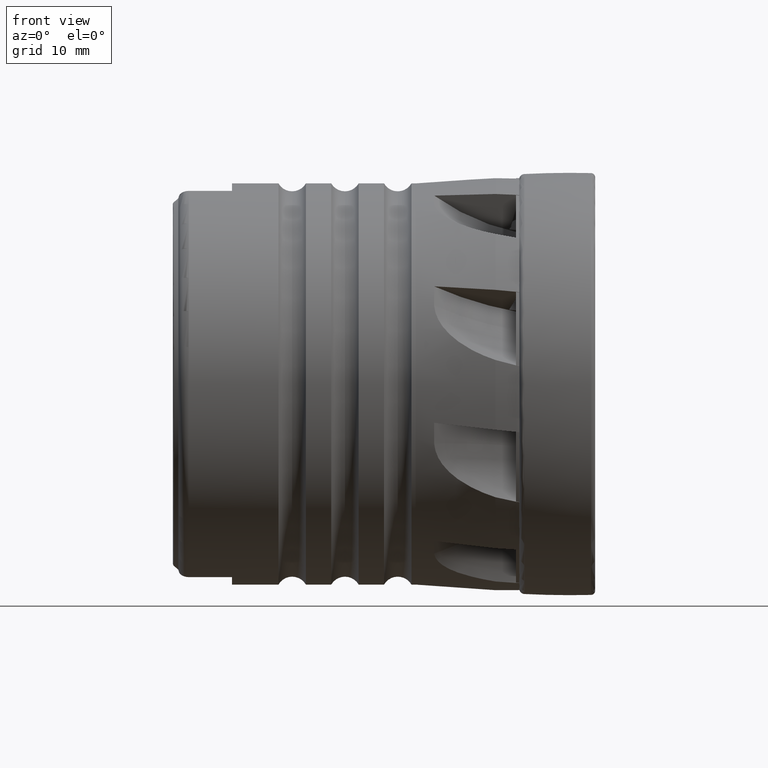
[diagram: clean part render]
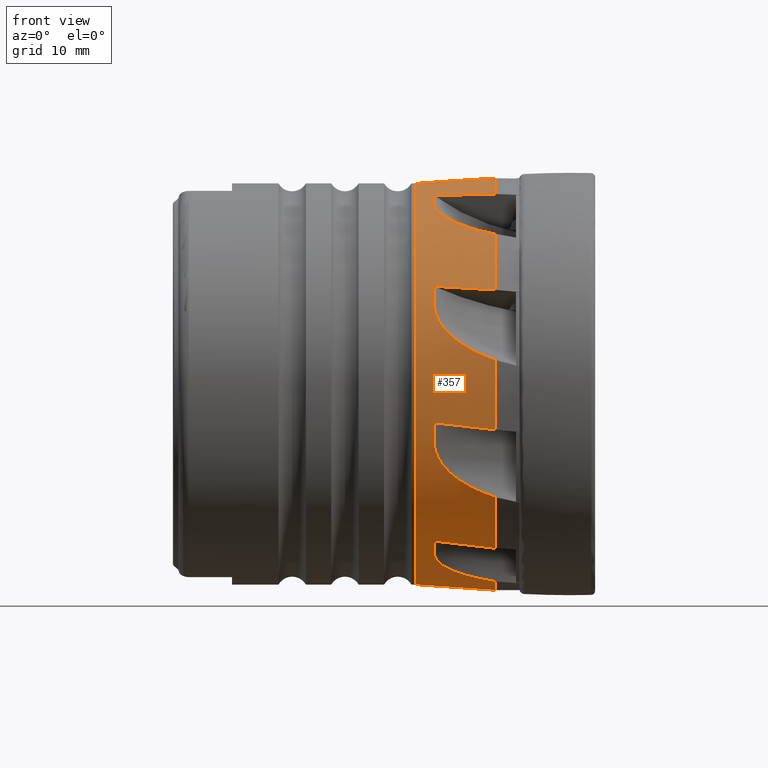
[diagram: same view with one face highlighted and labeled with its STEP entity id]
A machine part, front view. The second image highlights one B-rep face of the part: STEP entity #357.
In plain terms, the highlighted conical surface has half-angle 3.997 deg.
Its self-contained STEP definition (entity closure, byte-faithful):
#47 = EDGE_CURVE ( 'NONE', #751, #684, #8573, .T. ) ;
#58 = EDGE_CURVE ( 'NONE', #794, #744, #8564, .T. ) ;
#65 = EDGE_CURVE ( 'NONE', #606, #794, #8558, .T. ) ;
#70 = EDGE_CURVE ( 'NONE', #527, #8753, #8554, .T. ) ;
#77 = EDGE_CURVE ( 'NONE', #721, #527, #8548, .T. ) ;
#81 = EDGE_CURVE ( 'NONE', #722, #592, #8546, .T. ) ;
#88 = EDGE_CURVE ( 'NONE', #600, #722, #8538, .T. ) ;
#93 = EDGE_CURVE ( 'NONE', #8752, #705, #8535, .T. ) ;
#99 = EDGE_CURVE ( 'NONE', #776, #8752, #8529, .T. ) ;
#136 = EDGE_CURVE ( 'NONE', #1343, #776, #1413, .T. ) ;
#142 = EDGE_CURVE ( 'NONE', #1340, #600, #7707, .T. ) ;
#185 = EDGE_CURVE ( 'NONE', #1331, #606, #1365, .T. ) ;
#201 = EDGE_CURVE ( 'NONE', #1337, #721, #1373, .T. ) ;
#357 = ADVANCED_FACE ( 'NONE', ( #4326 ), #8479, .T. ) ;
#496 = EDGE_CURVE ( 'NONE', #684, #1331, #4769, .T. ) ;
#497 = EDGE_CURVE ( 'NONE', #744, #1337, #4770, .T. ) ;
#498 = EDGE_CURVE ( 'NONE', #8753, #1340, #4771, .T. ) ;
#499 = EDGE_CURVE ( 'NONE', #592, #1343, #4773, .T. ) ;
#527 = VERTEX_POINT ( 'NONE', #5657 ) ;
#585 = VERTEX_POINT ( 'NONE', #5713 ) ;
#592 = VERTEX_POINT ( 'NONE', #5720 ) ;
#598 = VERTEX_POINT ( 'NONE', #5726 ) ;
#600 = VERTEX_POINT ( 'NONE', #5728 ) ;
#601 = VERTEX_POINT ( 'NONE', #5729 ) ;
#606 = VERTEX_POINT ( 'NONE', #5734 ) ;
#684 = VERTEX_POINT ( 'NONE', #5812 ) ;
#705 = VERTEX_POINT ( 'NONE', #5833 ) ;
#721 = VERTEX_POINT ( 'NONE', #5849 ) ;
#722 = VERTEX_POINT ( 'NONE', #5850 ) ;
#744 = VERTEX_POINT ( 'NONE', #5872 ) ;
#751 = VERTEX_POINT ( 'NONE', #5879 ) ;
#776 = VERTEX_POINT ( 'NONE', #5904 ) ;
#794 = VERTEX_POINT ( 'NONE', #5922 ) ;
#844 = EDGE_LOOP ( 'NONE', ( #1709, #1710, #1711, #1712, #1713, #1714, #1715, #1716, #1717, #1718, #1719, #1720, #1721, #1722, #1723, #1724, #1725, #1726, #1727, #1728, #1729 ) ) ;
#1331 = VERTEX_POINT ( 'NONE', #5996 ) ;
#1337 = VERTEX_POINT ( 'NONE', #6002 ) ;
#1340 = VERTEX_POINT ( 'NONE', #6005 ) ;
#1343 = VERTEX_POINT ( 'NONE', #6008 ) ;
#1365 =( BOUNDED_CURVE ( )  B_SPLINE_CURVE ( 3, ( #3422, #3429, #3430, #3431 ),
 .UNSPECIFIED., .F., .T. ) 
 B_SPLINE_CURVE_WITH_KNOTS ( ( 4, 4 ),
 ( 2.260414163002135700, 2.283986058353179700 ),
 .UNSPECIFIED. ) 
 CURVE ( )  GEOMETRIC_REPRESENTATION_ITEM ( )  RATIONAL_B_SPLINE_CURVE ( ( 1.000000000000000000, 0.9999536976817827700, 0.9999536976817827700, 1.000000000000000000 ) ) 
 REPRESENTATION_ITEM ( '' )  );
#1373 =( BOUNDED_CURVE ( )  B_SPLINE_CURVE ( 3, ( #3485, #3489, #3490, #3491 ),
 .UNSPECIFIED., .F., .T. ) 
 B_SPLINE_CURVE_WITH_KNOTS ( ( 4, 4 ),
 ( 2.260414163002136200, 2.283986058353179200 ),
 .UNSPECIFIED. ) 
 CURVE ( )  GEOMETRIC_REPRESENTATION_ITEM ( )  RATIONAL_B_SPLINE_CURVE ( ( 1.000000000000000000, 0.9999536976817827700, 0.9999536976817827700, 1.000000000000000000 ) ) 
 REPRESENTATION_ITEM ( '' )  );
#1413 =( BOUNDED_CURVE ( )  B_SPLINE_CURVE ( 3, ( #3210, #3218, #3219, #3220 ),
 .UNSPECIFIED., .F., .T. ) 
 B_SPLINE_CURVE_WITH_KNOTS ( ( 4, 4 ),
 ( 2.260414163002137000, 2.283986058353181500 ),
 .UNSPECIFIED. ) 
 CURVE ( )  GEOMETRIC_REPRESENTATION_ITEM ( )  RATIONAL_B_SPLINE_CURVE ( ( 1.000000000000000000, 0.9999536976817827700, 0.9999536976817827700, 1.000000000000000000 ) ) 
 REPRESENTATION_ITEM ( '' )  );
#1709 = ORIENTED_EDGE ( 'NONE', *, *, #9076, .F. ) ;
#1710 = ORIENTED_EDGE ( 'NONE', *, *, #2616, .T. ) ;
#1711 = ORIENTED_EDGE ( 'NONE', *, *, #9097, .T. ) ;
#1712 = ORIENTED_EDGE ( 'NONE', *, *, #9098, .F. ) ;
#1713 = ORIENTED_EDGE ( 'NONE', *, *, #93, .F. ) ;
#1714 = ORIENTED_EDGE ( 'NONE', *, *, #99, .F. ) ;
#1715 = ORIENTED_EDGE ( 'NONE', *, *, #136, .F. ) ;
#1716 = ORIENTED_EDGE ( 'NONE', *, *, #499, .F. ) ;
#1717 = ORIENTED_EDGE ( 'NONE', *, *, #81, .F. ) ;
#1718 = ORIENTED_EDGE ( 'NONE', *, *, #88, .F. ) ;
#1719 = ORIENTED_EDGE ( 'NONE', *, *, #142, .F. ) ;
#1720 = ORIENTED_EDGE ( 'NONE', *, *, #498, .F. ) ;
#1721 = ORIENTED_EDGE ( 'NONE', *, *, #70, .F. ) ;
#1722 = ORIENTED_EDGE ( 'NONE', *, *, #77, .F. ) ;
#1723 = ORIENTED_EDGE ( 'NONE', *, *, #201, .F. ) ;
#1724 = ORIENTED_EDGE ( 'NONE', *, *, #497, .F. ) ;
#1725 = ORIENTED_EDGE ( 'NONE', *, *, #58, .F. ) ;
#1726 = ORIENTED_EDGE ( 'NONE', *, *, #65, .F. ) ;
#1727 = ORIENTED_EDGE ( 'NONE', *, *, #185, .F. ) ;
#1728 = ORIENTED_EDGE ( 'NONE', *, *, #496, .F. ) ;
#1729 = ORIENTED_EDGE ( 'NONE', *, *, #47, .F. ) ;
#2616 = EDGE_CURVE ( 'NONE', #601, #598, #4796, .T. ) ;
#2701 = CARTESIAN_POINT ( 'NONE',  ( -10.69566776978167700, -0.4565168389670497000, 19.40902784787286700 ) ) ;
#2702 = CARTESIAN_POINT ( 'NONE',  ( -9.861603144764771400, -0.8238520462597470600, 19.45218348692791100 ) ) ;
#2706 = CARTESIAN_POINT ( 'NONE',  ( -11.47702921617929000, 1.636143863776488500E-014, 19.35443603820733900 ) ) ;
#2707 = CARTESIAN_POINT ( 'NONE',  ( -9.000000000000012400, -1.127377908553357300, 19.49492947669485000 ) ) ;
#2764 = CARTESIAN_POINT ( 'NONE',  ( -14.79319364801362000, -8.868507687956576300, 16.94282789362552000 ) ) ;
#2765 = CARTESIAN_POINT ( 'NONE',  ( -14.76841073826453900, -9.022356375486774400, 16.86333684323651700 ) ) ;
#2769 = CARTESIAN_POINT ( 'NONE',  ( -14.80481870781024900, -8.712633619233708200, 17.02170030463756600 ) ) ;
#2770 = CARTESIAN_POINT ( 'NONE',  ( -14.69397229198053600, -9.326214651242683100, 16.70316490196808700 ) ) ;
#2771 = CARTESIAN_POINT ( 'NONE',  ( -14.64387807677066500, -9.476931948325594500, 16.62207951581998300 ) ) ;
#2772 = CARTESIAN_POINT ( 'NONE',  ( -14.46295668139089900, -9.912075057048893400, 16.38360222794698400 ) ) ;
#2773 = CARTESIAN_POINT ( 'NONE',  ( -14.30033942912857500, -10.18479342430981500, 16.22820257570180400 ) ) ;
#2774 = CARTESIAN_POINT ( 'NONE',  ( -13.91429951060420000, -10.69452898903284100, 15.92939907927915200 ) ) ;
#2775 = CARTESIAN_POINT ( 'NONE',  ( -13.69483864131862000, -10.92712583583048800, 15.78868060588281200 ) ) ;
#2776 = CARTESIAN_POINT ( 'NONE',  ( -13.21635605298483900, -11.35987848365319100, 15.52167793015590100 ) ) ;
#2777 = CARTESIAN_POINT ( 'NONE',  ( -12.95580251518122800, -11.56078717345651800, 15.39486987249556400 ) ) ;
#2778 = CARTESIAN_POINT ( 'NONE',  ( -12.13466151464828300, -12.11832778682458300, 15.03851743303947000 ) ) ;
#2779 = CARTESIAN_POINT ( 'NONE',  ( -11.54459952056713200, -12.42629378898801400, 14.83578155613215400 ) ) ;
#2780 = CARTESIAN_POINT ( 'NONE',  ( -10.30929888896171300, -12.96497679157126700, 14.48344108858962500 ) ) ;
#2781 = CARTESIAN_POINT ( 'NONE',  ( -9.661325404110991500, -13.19516411530112200, 14.33393557646547700 ) ) ;
#2782 = CARTESIAN_POINT ( 'NONE',  ( -9.000000000000051500, -13.39472070147474300, 14.20931784356602500 ) ) ;
#2799 = CARTESIAN_POINT ( 'NONE',  ( -14.79758164397451400, -6.872887872670626800, 17.84463549249699800 ) ) ;
#2807 = CARTESIAN_POINT ( 'NONE',  ( -14.84620082147175600, -7.501138185646174100, 17.59902380604502200 ) ) ;
#2812 = CARTESIAN_POINT ( 'NONE',  ( -14.84944277428615500, -8.114293918084927200, 17.32446070102993800 ) ) ;
#2813 = CARTESIAN_POINT ( 'NONE',  ( -14.80481870781024900, -8.712633619233708200, 17.02170030463756600 ) ) ;
#2847 = CARTESIAN_POINT ( 'NONE',  ( -14.79316864678485500, -17.68445864238291800, 7.278046879415017900 ) ) ;
#2848 = CARTESIAN_POINT ( 'NONE',  ( -14.76829231026335200, -17.75142145871403800, 7.117768540542087400 ) ) ;
#2852 = CARTESIAN_POINT ( 'NONE',  ( -14.80481870781024500, -17.61560262056420000, 7.439005992622378800 ) ) ;
#2853 = CARTESIAN_POINT ( 'NONE',  ( -14.69340351606634000, -17.88172790733583600, 6.798496684201043500 ) ) ;
#2854 = CARTESIAN_POINT ( 'NONE',  ( -14.64314688253104700, -17.94504089664842200, 6.639509260910570800 ) ) ;
#2855 = CARTESIAN_POINT ( 'NONE',  ( -14.46244457844023200, -18.12458376559814300, 6.178341634296173400 ) ) ;
#2856 = CARTESIAN_POINT ( 'NONE',  ( -14.30143606947305400, -18.23266378954170700, 5.886598359998481000 ) ) ;
#2857 = CARTESIAN_POINT ( 'NONE',  ( -13.91466241583816600, -18.43158261684459000, 5.328688724992694900 ) ) ;
#2858 = CARTESIAN_POINT ( 'NONE',  ( -13.69403775183052700, -18.51973382844734000, 5.070117548959783200 ) ) ;
#2859 = CARTESIAN_POINT ( 'NONE',  ( -13.21549446947234200, -18.67956789220302100, 4.587521539931897200 ) ) ;
#2860 = CARTESIAN_POINT ( 'NONE',  ( -12.95684416193636900, -18.75144716514399000, 4.362851728429950200 ) ) ;
#2861 = CARTESIAN_POINT ( 'NONE',  ( -12.13386095047725800, -18.94996337218183800, 3.729992167068803400 ) ) ;
#2862 = CARTESIAN_POINT ( 'NONE',  ( -11.54148875825746000, -19.05586905869133900, 3.375675480277575700 ) ) ;
#2863 = CARTESIAN_POINT ( 'NONE',  ( -10.30713565420872200, -19.24180035564816300, 2.760328055081165700 ) ) ;
#2864 = CARTESIAN_POINT ( 'NONE',  ( -9.661397577921979600, -19.32175039178982000, 2.498768112645632500 ) ) ;
#2865 = CARTESIAN_POINT ( 'NONE',  ( -9.000000000000014200, -19.39452481243756700, 2.275008472455300400 ) ) ;
#2882 = CARTESIAN_POINT ( 'NONE',  ( -14.79758164397426700, -16.73524815698890900, 9.251976691193416300 ) ) ;
#2890 = CARTESIAN_POINT ( 'NONE',  ( -14.84616441664147500, -17.05839752176886400, 8.660438967289835000 ) ) ;
#2895 = CARTESIAN_POINT ( 'NONE',  ( -14.84947654939761500, -17.35165882593397800, 8.056005900518888700 ) ) ;
#2896 = CARTESIAN_POINT ( 'NONE',  ( -14.80481870781024500, -17.61560262056420000, 7.439005992622378800 ) ) ;
#2920 = CARTESIAN_POINT ( 'NONE',  ( -14.78124653379245000, -18.17341956553619300, -5.963518058038781400 ) ) ;
#2921 = CARTESIAN_POINT ( 'NONE',  ( -14.70463284181845200, -18.06887642958779900, -6.288142892520013100 ) ) ;
#2925 = CARTESIAN_POINT ( 'NONE',  ( -14.80481870781025000, -18.27603538011688800, -5.624481898683276500 ) ) ;
#2926 = CARTESIAN_POINT ( 'NONE',  ( -14.52433555344666000, -17.90986430056277400, -6.757375165172915000 ) ) ;
#2927 = CARTESIAN_POINT ( 'NONE',  ( -14.45274475699064000, -17.85627006352086000, -6.911418232639018600 ) ) ;
#2928 = CARTESIAN_POINT ( 'NONE',  ( -14.29334179247209100, -17.75131728626966800, -7.206345442474564300 ) ) ;
#2929 = CARTESIAN_POINT ( 'NONE',  ( -14.20524254547196500, -17.69963095292280600, -7.348230942732039100 ) ) ;
#2930 = CARTESIAN_POINT ( 'NONE',  ( -13.91915585846901500, -17.54690362481124300, -7.759518944359427900 ) ) ;
#2931 = CARTESIAN_POINT ( 'NONE',  ( -13.69803482869020100, -17.44759574682320000, -8.016131042253823200 ) ) ;
#2932 = CARTESIAN_POINT ( 'NONE',  ( -13.21610193409552500, -17.25834081563606800, -8.492390411991900500 ) ) ;
#2933 = CARTESIAN_POINT ( 'NONE',  ( -12.95814888737199800, -17.16933985266703600, -8.709790077616782300 ) ) ;
#2934 = CARTESIAN_POINT ( 'NONE',  ( -12.41631773992093500, -17.00142502162918800, -9.113572224685587000 ) ) ;
#2935 = CARTESIAN_POINT ( 'NONE',  ( -12.13235386673200500, -16.92253138609944300, -9.299846645074309100 ) ) ;
#2936 = CARTESIAN_POINT ( 'NONE',  ( -11.54301249750499800, -16.77439162681952600, -9.647320706253337300 ) ) ;
#2937 = CARTESIAN_POINT ( 'NONE',  ( -11.23732989186999600, -16.70515218078027400, -9.808482675719153200 ) ) ;
#2938 = CARTESIAN_POINT ( 'NONE',  ( -10.30589430575861200, -16.51405387334152800, -10.25461105472360600 ) ) ;
#2939 = CARTESIAN_POINT ( 'NONE',  ( -9.661527917784336900, -16.40751405923422400, -10.50557132417138500 ) ) ;
#2940 = CARTESIAN_POINT ( 'NONE',  ( -8.999999999975742100, -16.31941521752385800, -10.72380264682807800 ) ) ;
#2957 = CARTESIAN_POINT ( 'NONE',  ( -14.79758164397326100, -18.76699983708580500, -3.669784828186997100 ) ) ;
#2965 = CARTESIAN_POINT ( 'NONE',  ( -14.84634592511994100, -18.63381776765502500, -4.333114441486409300 ) ) ;
#2971 = CARTESIAN_POINT ( 'NONE',  ( -14.84930911055277000, -18.46971369400505800, -4.984581002711186300 ) ) ;
#2972 = CARTESIAN_POINT ( 'NONE',  ( -14.80481870781025000, -18.27603538011688800, -5.624481898683276500 ) ) ;
#3037 = CARTESIAN_POINT ( 'NONE',  ( -14.78127562553555800, -10.08873752516030600, -16.24972966627607500 ) ) ;
#3038 = CARTESIAN_POINT ( 'NONE',  ( -14.70441347862392000, -9.798456626121913300, -16.43219053973710000 ) ) ;
#3042 = CARTESIAN_POINT ( 'NONE',  ( -14.80481870781023800, -10.38490806980452100, -16.05621220044157500 ) ) ;
#3043 = CARTESIAN_POINT ( 'NONE',  ( -14.46233013427881500, -9.231231642291032100, -16.77672112899277900 ) ) ;
#3044 = CARTESIAN_POINT ( 'NONE',  ( -14.29977873095183000, -8.961174759778490500, -16.93463224905659800 ) ) ;
#3045 = CARTESIAN_POINT ( 'NONE',  ( -13.91786034533609900, -8.452457978929903200, -17.22392114400349100 ) ) ;
#3046 = CARTESIAN_POINT ( 'NONE',  ( -13.69510517892369500, -8.210026767606525100, -17.35741064442152700 ) ) ;
#3047 = CARTESIAN_POINT ( 'NONE',  ( -13.21484352864651900, -7.760871530896896100, -17.59950872970532700 ) ) ;
#3048 = CARTESIAN_POINT ( 'NONE',  ( -12.95725303966349400, -7.553228065938030900, -17.70869458529314900 ) ) ;
#3049 = CARTESIAN_POINT ( 'NONE',  ( -12.14394368008170500, -6.970747908788800900, -18.01086648645772600 ) ) ;
#3050 = CARTESIAN_POINT ( 'NONE',  ( -11.54415458516928600, -6.634660034713380800, -18.17955523054833100 ) ) ;
#3051 = CARTESIAN_POINT ( 'NONE',  ( -10.30488030204505800, -6.058635109966653300, -18.47068427267795700 ) ) ;
#3052 = CARTESIAN_POINT ( 'NONE',  ( -9.661278890107784200, -5.815955679268308000, -18.59432289201157600 ) ) ;
#3053 = CARTESIAN_POINT ( 'NONE',  ( -8.999999999974345900, -5.608269872230425600, -18.70482732585982800 ) ) ;
#3074 = CARTESIAN_POINT ( 'NONE',  ( -14.79758164397467500, -12.01746372144045300, -14.87441324134327700 ) ) ;
#3075 = CARTESIAN_POINT ( 'NONE',  ( -14.82170312872741400, -11.75608643377751000, -15.08342080389440400 ) ) ;
#3080 = CARTESIAN_POINT ( 'NONE',  ( -14.83477858223324500, -11.48689053332985700, -15.28834078081413000 ) ) ;
#3081 = CARTESIAN_POINT ( 'NONE',  ( -14.83737861638531000, -10.94031845806528500, -15.68389312257519000 ) ) ;
#3082 = CARTESIAN_POINT ( 'NONE',  ( -14.82700625984686700, -10.66402612640984100, -15.87383680910144400 ) ) ;
#3083 = CARTESIAN_POINT ( 'NONE',  ( -14.80481870781023800, -10.38490806980452100, -16.05621220044157500 ) ) ;
#3210 = CARTESIAN_POINT ( 'NONE',  ( -9.000000000000005300, -11.79784309277857800, -15.56066048110352500 ) ) ;
#3218 = CARTESIAN_POINT ( 'NONE',  ( -10.95172215959635600, -11.87374695470503600, -15.33198691742505000 ) ) ;
#3219 = CARTESIAN_POINT ( 'NONE',  ( -12.88433885888586000, -11.94695722073039200, -15.10322724540182500 ) ) ;
#3220 = CARTESIAN_POINT ( 'NONE',  ( -14.79758164397467500, -12.01746372144045300, -14.87441324134327700 ) ) ;
#3229 = CARTESIAN_POINT ( 'NONE',  ( -9.000000000000003600, -19.03987189780498200, -4.336650131746417000 ) ) ;
#3241 = CARTESIAN_POINT ( 'NONE',  ( -10.95172215959338900, -18.95102909604922200, -4.112685957028868500 ) ) ;
#3242 = CARTESIAN_POINT ( 'NONE',  ( -12.88433885888349200, -18.86006753074470800, -3.890387229562734200 ) ) ;
#3243 = CARTESIAN_POINT ( 'NONE',  ( -14.79758164397326100, -18.76699983708580500, -3.669784828186997100 ) ) ;
#3422 = CARTESIAN_POINT ( 'NONE',  ( -9.000000000000003600, -7.577005729910865700, 17.99756206876081400 ) ) ;
#3429 = CARTESIAN_POINT ( 'NONE',  ( -10.95172215959601700, -7.341016683628201800, 17.94895995959523600 ) ) ;
#3430 = CARTESIAN_POINT ( 'NONE',  ( -12.88433885888550600, -7.106299863282020900, 17.89798207377941000 ) ) ;
#3431 = CARTESIAN_POINT ( 'NONE',  ( -14.79758164397451400, -6.872887872670626800, 17.84463549249699800 ) ) ;
#3485 = CARTESIAN_POINT ( 'NONE',  ( -9.000000000000003600, -17.37293303724278100, 8.916527010752476600 ) ) ;
#3489 = CARTESIAN_POINT ( 'NONE',  ( -10.95172215959602400, -17.16091410612472500, 9.030986470074566300 ) ) ;
#3490 = CARTESIAN_POINT ( 'NONE',  ( -12.88433885888543900, -16.94834263682155000, 9.142808207826934800 ) ) ;
#3491 = CARTESIAN_POINT ( 'NONE',  ( -14.79758164397426700, -16.73524815698890900, 9.251976691193416300 ) ) ;
#4323 = DIRECTION ( 'NONE',  ( 0.0000000000000000000, 0.0000000000000000000, -1.000000000000000000 ) ) ;
#4325 = CARTESIAN_POINT ( 'NONE',  ( -9.000000000000003600, 0.0000000000000000000, 0.0000000000000000000 ) ) ;
#4326 = FACE_OUTER_BOUND ( 'NONE', #844, .T. ) ;
#4327 = DIRECTION ( 'NONE',  ( 1.000000000000000000, -0.0000000000000000000, -0.0000000000000000000 ) ) ;
#4769 = CIRCLE ( 'NONE', #4772, 19.52750000000000000 ) ;
#4770 = CIRCLE ( 'NONE', #4774, 19.52750000000000000 ) ;
#4771 = CIRCLE ( 'NONE', #4776, 19.52750000000000000 ) ;
#4772 = AXIS2_PLACEMENT_3D ( 'NONE', #5575, #5576, #5577 ) ;
#4773 = CIRCLE ( 'NONE', #4777, 19.52750000000000000 ) ;
#4774 = AXIS2_PLACEMENT_3D ( 'NONE', #5578, #5579, #5580 ) ;
#4776 = AXIS2_PLACEMENT_3D ( 'NONE', #5581, #5582, #5583 ) ;
#4777 = AXIS2_PLACEMENT_3D ( 'NONE', #5586, #5587, #5588 ) ;
#4796 = CIRCLE ( 'NONE', #4799, 19.00000000000000000 ) ;
#4799 = AXIS2_PLACEMENT_3D ( 'NONE', #6068, #6069, #6070 ) ;
#5218 = VECTOR ( 'NONE', #7744, 1000.000000000000200 ) ;
#5226 = VECTOR ( 'NONE', #7885, 1000.000000000000200 ) ;
#5231 = CIRCLE ( 'NONE', #5232, 19.52750000000000000 ) ;
#5232 = AXIS2_PLACEMENT_3D ( 'NONE', #7888, #7889, #7890 ) ;
#5575 = CARTESIAN_POINT ( 'NONE',  ( -9.000000000000003600, 0.0000000000000000000, 0.0000000000000000000 ) ) ;
#5576 = DIRECTION ( 'NONE',  ( 1.000000000000000000, -0.0000000000000000000, -0.0000000000000000000 ) ) ;
#5577 = DIRECTION ( 'NONE',  ( 0.0000000000000000000, 0.0000000000000000000, -1.000000000000000000 ) ) ;
#5578 = CARTESIAN_POINT ( 'NONE',  ( -9.000000000000003600, 0.0000000000000000000, 0.0000000000000000000 ) ) ;
#5579 = DIRECTION ( 'NONE',  ( 1.000000000000000000, -0.0000000000000000000, -0.0000000000000000000 ) ) ;
#5580 = DIRECTION ( 'NONE',  ( 0.0000000000000000000, 0.0000000000000000000, -1.000000000000000000 ) ) ;
#5581 = CARTESIAN_POINT ( 'NONE',  ( -9.000000000000003600, 0.0000000000000000000, 0.0000000000000000000 ) ) ;
#5582 = DIRECTION ( 'NONE',  ( 1.000000000000000000, -0.0000000000000000000, -0.0000000000000000000 ) ) ;
#5583 = DIRECTION ( 'NONE',  ( 0.0000000000000000000, 0.0000000000000000000, -1.000000000000000000 ) ) ;
#5586 = CARTESIAN_POINT ( 'NONE',  ( -9.000000000000003600, 0.0000000000000000000, 0.0000000000000000000 ) ) ;
#5587 = DIRECTION ( 'NONE',  ( 1.000000000000000000, -0.0000000000000000000, -0.0000000000000000000 ) ) ;
#5588 = DIRECTION ( 'NONE',  ( 0.0000000000000000000, 0.0000000000000000000, -1.000000000000000000 ) ) ;
#5657 = CARTESIAN_POINT ( 'NONE',  ( -14.80481870781024500, -17.61560262056420000, 7.439005992622378800 ) ) ;
#5713 = CARTESIAN_POINT ( 'NONE',  ( -9.000000000000003600, 0.0000000000000000000, -19.52750000000000000 ) ) ;
#5720 = CARTESIAN_POINT ( 'NONE',  ( -8.999999999975742100, -16.31941521752385800, -10.72380264682807800 ) ) ;
#5726 = CARTESIAN_POINT ( 'NONE',  ( -16.54999999999999400, 0.0000000000000000000, -19.00000000000000000 ) ) ;
#5728 = CARTESIAN_POINT ( 'NONE',  ( -14.79758164397326100, -18.76699983708580500, -3.669784828186997100 ) ) ;
#5729 = CARTESIAN_POINT ( 'NONE',  ( -16.54999999999999400, 2.359128977707592600E-015, 19.00000000000000000 ) ) ;
#5734 = CARTESIAN_POINT ( 'NONE',  ( -14.79758164397451400, -6.872887872670626800, 17.84463549249699800 ) ) ;
#5812 = CARTESIAN_POINT ( 'NONE',  ( -9.000000000000012400, -1.127377908553357300, 19.49492947669485000 ) ) ;
#5833 = CARTESIAN_POINT ( 'NONE',  ( -8.999999999974345900, -5.608269872230425600, -18.70482732585982800 ) ) ;
#5849 = CARTESIAN_POINT ( 'NONE',  ( -14.79758164397426700, -16.73524815698890900, 9.251976691193416300 ) ) ;
#5850 = CARTESIAN_POINT ( 'NONE',  ( -14.80481870781025000, -18.27603538011688800, -5.624481898683276500 ) ) ;
#5872 = CARTESIAN_POINT ( 'NONE',  ( -9.000000000000051500, -13.39472070147474300, 14.20931784356602500 ) ) ;
#5879 = CARTESIAN_POINT ( 'NONE',  ( -11.47702921617929000, 1.636143863776488500E-014, 19.35443603820733900 ) ) ;
#5904 = CARTESIAN_POINT ( 'NONE',  ( -14.79758164397467500, -12.01746372144045300, -14.87441324134327700 ) ) ;
#5922 = CARTESIAN_POINT ( 'NONE',  ( -14.80481870781024900, -8.712633619233708200, 17.02170030463756600 ) ) ;
#5996 = CARTESIAN_POINT ( 'NONE',  ( -9.000000000000003600, -7.577005729910865700, 17.99756206876081400 ) ) ;
#6002 = CARTESIAN_POINT ( 'NONE',  ( -9.000000000000003600, -17.37293303724278100, 8.916527010752476600 ) ) ;
#6005 = CARTESIAN_POINT ( 'NONE',  ( -9.000000000000003600, -19.03987189780498200, -4.336650131746417000 ) ) ;
#6008 = CARTESIAN_POINT ( 'NONE',  ( -9.000000000000005300, -11.79784309277857800, -15.56066048110352500 ) ) ;
#6068 = CARTESIAN_POINT ( 'NONE',  ( -16.54999999999999400, 0.0000000000000000000, 0.0000000000000000000 ) ) ;
#6069 = DIRECTION ( 'NONE',  ( 1.000000000000000000, -0.0000000000000000000, -0.0000000000000000000 ) ) ;
#6070 = DIRECTION ( 'NONE',  ( 0.0000000000000000000, 0.0000000000000000000, -1.000000000000000000 ) ) ;
#6313 = CARTESIAN_POINT ( 'NONE',  ( -14.80481870781023800, -10.38490806980452100, -16.05621220044157500 ) ) ;
#6314 = CARTESIAN_POINT ( 'NONE',  ( -9.000000000000014200, -19.39452481243756700, 2.275008472455300400 ) ) ;
#7707 =( BOUNDED_CURVE ( )  B_SPLINE_CURVE ( 3, ( #3229, #3241, #3242, #3243 ),
 .UNSPECIFIED., .F., .T. ) 
 B_SPLINE_CURVE_WITH_KNOTS ( ( 4, 4 ),
 ( 2.260414163002122400, 2.283986058353175300 ),
 .UNSPECIFIED. ) 
 CURVE ( )  GEOMETRIC_REPRESENTATION_ITEM ( )  RATIONAL_B_SPLINE_CURVE ( ( 1.000000000000000000, 0.9999536976817826600, 0.9999536976817826600, 1.000000000000000000 ) ) 
 REPRESENTATION_ITEM ( '' )  );
#7742 = LINE ( 'NONE', #7743, #5218 ) ;
#7743 = CARTESIAN_POINT ( 'NONE',  ( -9.000000000000003600, 2.391429037034993800E-015, 19.52750000000000000 ) ) ;
#7744 = DIRECTION ( 'NONE',  ( 0.9975681623537993000, 8.535499556891212500E-018, 0.06969764313134170500 ) ) ;
#7876 = CARTESIAN_POINT ( 'NONE',  ( -9.000000000000003600, 0.0000000000000000000, -19.52750000000000000 ) ) ;
#7881 = LINE ( 'NONE', #7876, #5226 ) ;
#7885 = DIRECTION ( 'NONE',  ( 0.9975681623537993000, 0.0000000000000000000, -0.06969764313134170500 ) ) ;
#7888 = CARTESIAN_POINT ( 'NONE',  ( -9.000000000000003600, 0.0000000000000000000, 0.0000000000000000000 ) ) ;
#7889 = DIRECTION ( 'NONE',  ( 1.000000000000000000, -0.0000000000000000000, -0.0000000000000000000 ) ) ;
#7890 = DIRECTION ( 'NONE',  ( 0.0000000000000000000, 0.0000000000000000000, -1.000000000000000000 ) ) ;
#8479 = CONICAL_SURFACE ( 'NONE', #8498, 19.52750000000000000, 0.06975419593019592500 ) ;
#8498 = AXIS2_PLACEMENT_3D ( 'NONE', #4325, #4327, #4323 ) ;
#8529 = B_SPLINE_CURVE_WITH_KNOTS ( 'NONE', 3,
 ( #3074, #3075, #3080, #3081, #3082, #3083 ),
 .UNSPECIFIED., .F., .F.,
 ( 4, 2, 4 ),
 ( 0.003214626863267869000, 0.004216501772390023600, 0.005218376681512177700 ),
 .UNSPECIFIED. ) ;
#8535 = B_SPLINE_CURVE_WITH_KNOTS ( 'NONE', 3,
 ( #3042, #3037, #3038, #3043, #3044, #3045, #3046, #3047, #3048, #3049, #3050, #3051, #3052, #3053 ),
 .UNSPECIFIED., .F., .F.,
 ( 4, 2, 2, 2, 2, 2, 4 ),
 ( 0.004173042063296784600, 0.005224320925909967800, 0.006275599788523151000, 0.007326878651136333400, 0.008378157513749515800, 0.01048071523897588400, 0.01258327296420225200 ),
 .UNSPECIFIED. ) ;
#8538 = B_SPLINE_CURVE_WITH_KNOTS ( 'NONE', 3,
 ( #2957, #2965, #2971, #2972 ),
 .UNSPECIFIED., .F., .F.,
 ( 4, 4 ),
 ( 1.615690698439410900E-005, 0.002026165984757231400 ),
 .UNSPECIFIED. ) ;
#8546 = B_SPLINE_CURVE_WITH_KNOTS ( 'NONE', 3,
 ( #2925, #2920, #2921, #2926, #2927, #2928, #2929, #2930, #2931, #2932, #2933, #2934, #2935, #2936, #2937, #2938, #2939, #2940 ),
 .UNSPECIFIED., .F., .F.,
 ( 4, 2, 2, 2, 2, 2, 2, 2, 4 ),
 ( 1.222848212147679700E-005, 0.001060614922156373100, 0.001584808142173822000, 0.002109001362191271000, 0.003157387802226165500, 0.004205774242261060000, 0.005254160682295954900, 0.006302547122330848900, 0.008399320002400638800 ),
 .UNSPECIFIED. ) ;
#8548 = B_SPLINE_CURVE_WITH_KNOTS ( 'NONE', 3,
 ( #2882, #2890, #2895, #2896 ),
 .UNSPECIFIED., .F., .F.,
 ( 4, 4 ),
 ( 0.004801567583890874500, 0.006819404889839647500 ),
 .UNSPECIFIED. ) ;
#8554 = B_SPLINE_CURVE_WITH_KNOTS ( 'NONE', 3,
 ( #2852, #2847, #2848, #2853, #2854, #2855, #2856, #2857, #2858, #2859, #2860, #2861, #2862, #2863, #2864, #2865 ),
 .UNSPECIFIED., .F., .F.,
 ( 4, 2, 2, 2, 2, 2, 2, 4 ),
 ( 0.008325361140856947500, 0.008845596285676531800, 0.009365831430496116000, 0.01040630172013528300, 0.01144677200977445000, 0.01248724229941361800, 0.01456818287869195500, 0.01664912345797029200 ),
 .UNSPECIFIED. ) ;
#8558 = B_SPLINE_CURVE_WITH_KNOTS ( 'NONE', 3,
 ( #2799, #2807, #2812, #2813 ),
 .UNSPECIFIED., .F., .F.,
 ( 4, 4 ),
 ( 0.0004432673090263274900, 0.002457239322240703700 ),
 .UNSPECIFIED. ) ;
#8564 = B_SPLINE_CURVE_WITH_KNOTS ( 'NONE', 3,
 ( #2769, #2764, #2765, #2770, #2771, #2772, #2773, #2774, #2775, #2776, #2777, #2778, #2779, #2780, #2781, #2782 ),
 .UNSPECIFIED., .F., .F.,
 ( 4, 2, 2, 2, 2, 2, 2, 4 ),
 ( 0.0004302586075808106800, 0.0009548694799255889700, 0.001479480352270367400, 0.002528702096959923500, 0.003577923841649479500, 0.004627145586339035500, 0.006725589075718145900, 0.008824032565097256200 ),
 .UNSPECIFIED. ) ;
#8573 = B_SPLINE_CURVE_WITH_KNOTS ( 'NONE', 3,
 ( #2706, #2701, #2702, #2707 ),
 .UNSPECIFIED., .F., .F.,
 ( 4, 4 ),
 ( 0.01393828052926160100, 0.01664912345797030200 ),
 .UNSPECIFIED. ) ;
#8752 = VERTEX_POINT ( 'NONE', #6313 ) ;
#8753 = VERTEX_POINT ( 'NONE', #6314 ) ;
#9076 = EDGE_CURVE ( 'NONE', #601, #751, #7742, .T. ) ;
#9097 = EDGE_CURVE ( 'NONE', #598, #585, #7881, .T. ) ;
#9098 = EDGE_CURVE ( 'NONE', #705, #585, #5231, .T. ) ;